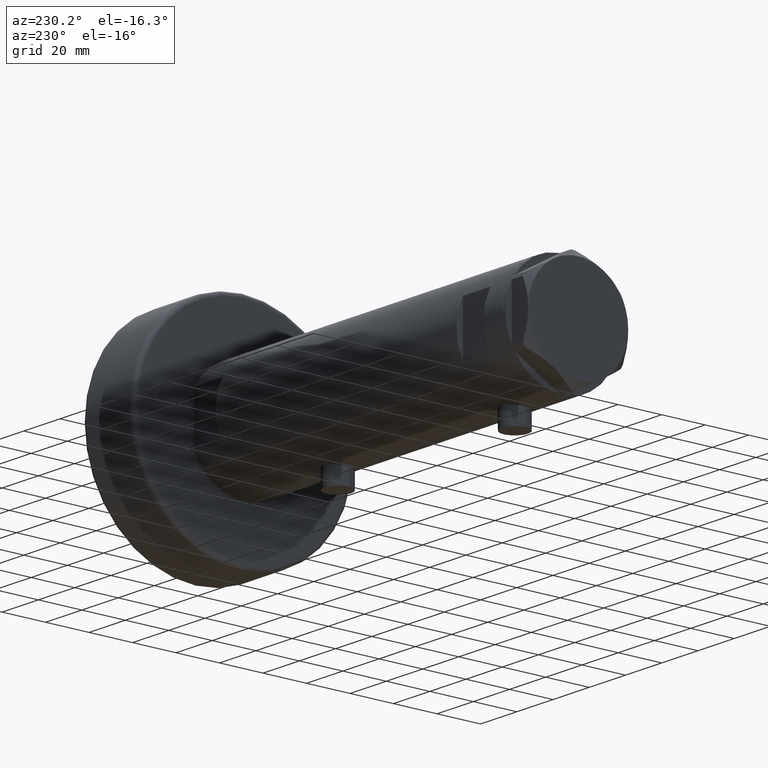
[diagram: clean part render]
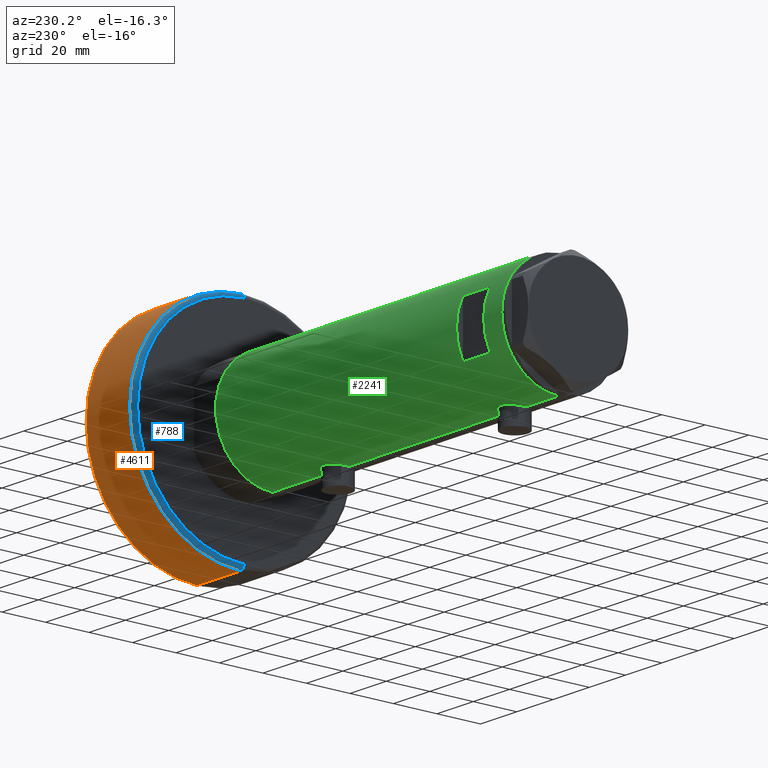
[diagram: same view with three faces highlighted in distinct colors, each labeled with its STEP entity id]
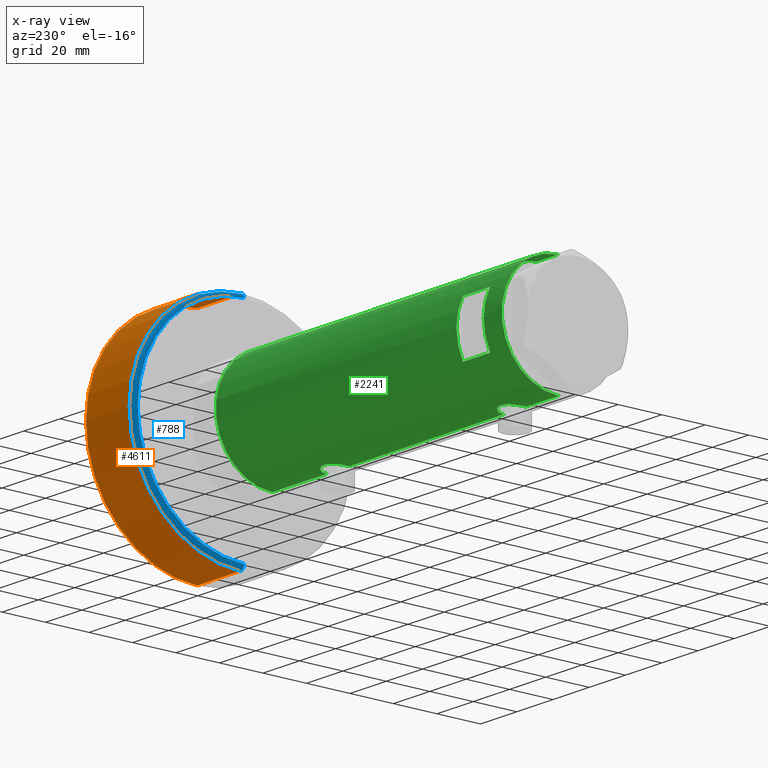
[diagram: x-ray of the same camera — body ghosted, the three highlighted faces saturated]
A machine part, auxiliary view with three faces highlighted in distinct colors.
The next image is the same camera in x-ray (body ghosted, the three faces saturated) — at least one of them is partly hidden behind the body in this view.
Their STEP definitions:

[orange] entity #4611 — the highlighted cylindrical surface (partial cylindrical patch) has radius 51 mm, axis along (-1, -0, 0).
#291 = EDGE_LOOP ( 'NONE', ( #3346, #3261, #5099, #423 ) ) ;
#320 = VERTEX_POINT ( 'NONE', #2695 ) ;
#366 = LINE ( 'NONE', #3251, #4353 ) ;
#412 = CARTESIAN_POINT ( 'NONE',  ( 0.000000000000000000, 0.000000000000000000, 28.00000000000000000 ) ) ;
#423 = ORIENTED_EDGE ( 'NONE', *, *, #1700, .F. ) ;
#429 = VERTEX_POINT ( 'NONE', #1969 ) ;
#521 = CARTESIAN_POINT ( 'NONE',  ( 0.000000000000000000, 0.000000000000000000, 1.999999999999998224 ) ) ;
#599 = DIRECTION ( 'NONE',  ( 0.000000000000000000, 0.000000000000000000, 1.000000000000000000 ) ) ;
#750 = DIRECTION ( 'NONE',  ( -0.000000000000000000, -0.000000000000000000, -1.000000000000000000 ) ) ;
#751 = CYLINDRICAL_SURFACE ( 'NONE', #3280, 50.99999999999999289 ) ;
#1194 = EDGE_CURVE ( 'NONE', #429, #3894, #3676, .T. ) ;
#1220 = DIRECTION ( 'NONE',  ( -0.000000000000000000, -0.000000000000000000, -1.000000000000000000 ) ) ;
#1677 = EDGE_CURVE ( 'NONE', #3894, #1852, #2861, .T. ) ;
#1700 = EDGE_CURVE ( 'NONE', #429, #320, #366, .T. ) ;
#1852 = VERTEX_POINT ( 'NONE', #4563 ) ;
#1901 = EDGE_CURVE ( 'NONE', #1852, #320, #5016, .T. ) ;
#1969 = CARTESIAN_POINT ( 'NONE',  ( -50.99999999999999289, 0.000000000000000000, 26.00000000000000355 ) ) ;
#1975 = VECTOR ( 'NONE', #3226, 1000.000000000000000 ) ;
#2007 = CARTESIAN_POINT ( 'NONE',  ( 50.99999999999999289, 6.245698675651499656E-15, 28.00000000000000000 ) ) ;
#2401 = DIRECTION ( 'NONE',  ( 1.000000000000000000, 0.000000000000000000, 0.000000000000000000 ) ) ;
#2695 = CARTESIAN_POINT ( 'NONE',  ( -50.99999999999999289, 0.000000000000000000, 1.999999999999998224 ) ) ;
#2861 = LINE ( 'NONE', #2007, #1975 ) ;
#3226 = DIRECTION ( 'NONE',  ( -0.000000000000000000, -0.000000000000000000, -1.000000000000000000 ) ) ;
#3251 = CARTESIAN_POINT ( 'NONE',  ( -50.99999999999999289, 0.000000000000000000, 28.00000000000000000 ) ) ;
#3261 = ORIENTED_EDGE ( 'NONE', *, *, #1677, .T. ) ;
#3280 = AXIS2_PLACEMENT_3D ( 'NONE', #412, #3979, #5187 ) ;
#3346 = ORIENTED_EDGE ( 'NONE', *, *, #1194, .T. ) ;
#3536 = FACE_OUTER_BOUND ( 'NONE', #291, .T. ) ;
#3635 = CARTESIAN_POINT ( 'NONE',  ( 0.000000000000000000, 0.000000000000000000, 26.00000000000000355 ) ) ;
#3676 = CIRCLE ( 'NONE', #3837, 50.99999999999999289 ) ;
#3765 = DIRECTION ( 'NONE',  ( 1.000000000000000000, 0.000000000000000000, 0.000000000000000000 ) ) ;
#3837 = AXIS2_PLACEMENT_3D ( 'NONE', #3635, #750, #2401 ) ;
#3894 = VERTEX_POINT ( 'NONE', #4680 ) ;
#3979 = DIRECTION ( 'NONE',  ( -0.000000000000000000, -0.000000000000000000, -1.000000000000000000 ) ) ;
#4353 = VECTOR ( 'NONE', #1220, 1000.000000000000000 ) ;
#4563 = CARTESIAN_POINT ( 'NONE',  ( 50.99999999999999289, 6.245698675651499656E-15, 1.999999999999998224 ) ) ;
#4611 = ADVANCED_FACE ( 'NONE', ( #3536 ), #751, .T. ) ;
#4680 = CARTESIAN_POINT ( 'NONE',  ( 50.99999999999999289, 6.245698675651499656E-15, 26.00000000000000355 ) ) ;
#4687 = AXIS2_PLACEMENT_3D ( 'NONE', #521, #599, #3765 ) ;
#5016 = CIRCLE ( 'NONE', #4687, 50.99999999999999289 ) ;
#5099 = ORIENTED_EDGE ( 'NONE', *, *, #1901, .T. ) ;
#5187 = DIRECTION ( 'NONE',  ( -1.000000000000000000, 0.000000000000000000, 0.000000000000000000 ) ) ;

[blue] entity #788 — the highlighted toroidal blend (fillet) surface has major radius 49 mm and minor (blend) radius 2 mm.
#130 = EDGE_LOOP ( 'NONE', ( #4682, #3468, #1726, #1976 ) ) ;
#290 = AXIS2_PLACEMENT_3D ( 'NONE', #3606, #4479, #1614 ) ;
#320 = VERTEX_POINT ( 'NONE', #2695 ) ;
#521 = CARTESIAN_POINT ( 'NONE',  ( 0.000000000000000000, 0.000000000000000000, 1.999999999999998224 ) ) ;
#599 = DIRECTION ( 'NONE',  ( 0.000000000000000000, 0.000000000000000000, 1.000000000000000000 ) ) ;
#632 = CIRCLE ( 'NONE', #290, 2.000000000000001776 ) ;
#691 = CARTESIAN_POINT ( 'NONE',  ( 48.99999999999998579, 0.000000000000000000, 0.000000000000000000 ) ) ;
#788 = ADVANCED_FACE ( 'NONE', ( #5189 ), #3085, .T. ) ;
#998 = CARTESIAN_POINT ( 'NONE',  ( -48.99999999999998579, 6.123233995736764507E-15, 0.000000000000000000 ) ) ;
#1558 = CARTESIAN_POINT ( 'NONE',  ( 0.000000000000000000, 0.000000000000000000, 1.999999999999998224 ) ) ;
#1588 = DIRECTION ( 'NONE',  ( 0.000000000000000000, 0.000000000000000000, 1.000000000000000000 ) ) ;
#1614 = DIRECTION ( 'NONE',  ( -1.000000000000000000, 1.224646799147353454E-16, 0.000000000000000000 ) ) ;
#1726 = ORIENTED_EDGE ( 'NONE', *, *, #1901, .F. ) ;
#1852 = VERTEX_POINT ( 'NONE', #4563 ) ;
#1872 = VERTEX_POINT ( 'NONE', #998 ) ;
#1894 = EDGE_CURVE ( 'NONE', #3651, #1852, #5186, .T. ) ;
#1901 = EDGE_CURVE ( 'NONE', #1852, #320, #5016, .T. ) ;
#1976 = ORIENTED_EDGE ( 'NONE', *, *, #1894, .F. ) ;
#2074 = AXIS2_PLACEMENT_3D ( 'NONE', #2179, #4980, #5002 ) ;
#2179 = CARTESIAN_POINT ( 'NONE',  ( 0.000000000000000000, 0.000000000000000000, 0.000000000000000000 ) ) ;
#2205 = EDGE_CURVE ( 'NONE', #1872, #320, #632, .T. ) ;
#2237 = CIRCLE ( 'NONE', #2074, 48.99999999999998579 ) ;
#2695 = CARTESIAN_POINT ( 'NONE',  ( -50.99999999999999289, 0.000000000000000000, 1.999999999999998224 ) ) ;
#2890 = EDGE_CURVE ( 'NONE', #1872, #3651, #2237, .T. ) ;
#2920 = CARTESIAN_POINT ( 'NONE',  ( 48.99999999999998579, 0.000000000000000000, 1.999999999999998224 ) ) ;
#3085 = TOROIDAL_SURFACE ( 'NONE', #4937, 48.99999999999998579, 2.000000000000000000 ) ;
#3373 = DIRECTION ( 'NONE',  ( 0.000000000000000000, -1.000000000000000000, 0.000000000000000000 ) ) ;
#3468 = ORIENTED_EDGE ( 'NONE', *, *, #2205, .T. ) ;
#3606 = CARTESIAN_POINT ( 'NONE',  ( -48.99999999999998579, 6.000769315822029359E-15, 1.999999999999998224 ) ) ;
#3651 = VERTEX_POINT ( 'NONE', #691 ) ;
#3765 = DIRECTION ( 'NONE',  ( 1.000000000000000000, 0.000000000000000000, 0.000000000000000000 ) ) ;
#4171 = DIRECTION ( 'NONE',  ( 0.000000000000000000, 0.000000000000000000, -1.000000000000000000 ) ) ;
#4479 = DIRECTION ( 'NONE',  ( 1.224646799147353207E-16, 1.000000000000000000, -0.000000000000000000 ) ) ;
#4563 = CARTESIAN_POINT ( 'NONE',  ( 50.99999999999999289, 6.245698675651499656E-15, 1.999999999999998224 ) ) ;
#4682 = ORIENTED_EDGE ( 'NONE', *, *, #2890, .F. ) ;
#4687 = AXIS2_PLACEMENT_3D ( 'NONE', #521, #599, #3765 ) ;
#4929 = AXIS2_PLACEMENT_3D ( 'NONE', #2920, #3373, #4171 ) ;
#4937 = AXIS2_PLACEMENT_3D ( 'NONE', #1558, #1588, #5162 ) ;
#4980 = DIRECTION ( 'NONE',  ( -0.000000000000000000, -0.000000000000000000, -1.000000000000000000 ) ) ;
#5002 = DIRECTION ( 'NONE',  ( 1.000000000000000000, 0.000000000000000000, 0.000000000000000000 ) ) ;
#5016 = CIRCLE ( 'NONE', #4687, 50.99999999999999289 ) ;
#5162 = DIRECTION ( 'NONE',  ( 1.000000000000000000, 0.000000000000000000, 0.000000000000000000 ) ) ;
#5186 = CIRCLE ( 'NONE', #4929, 2.000000000000000000 ) ;
#5189 = FACE_OUTER_BOUND ( 'NONE', #130, .T. ) ;

[green] entity #2241 — the highlighted cylindrical surface (partial cylindrical patch) has radius 26 mm, axis along (-1, -0, 0).
#2 = CARTESIAN_POINT ( 'NONE',  ( -26.00000000000001066, 0.4145874687851193729, -36.40000000000000568 ) ) ;
#13 = CARTESIAN_POINT ( 'NONE',  ( 25.52465069878074999, 4.952713637311402906, -45.38744860815256743 ) ) ;
#61 = DIRECTION ( 'NONE',  ( 0.000000000000000000, 0.000000000000000000, 1.000000000000000000 ) ) ;
#64 = CARTESIAN_POINT ( 'NONE',  ( 25.31017500740585291, 5.951503630041862891, 64.02049592637402498 ) ) ;
#65 = CARTESIAN_POINT ( 'NONE',  ( -25.28673619335055278, 6.048783215285168602, 53.32449009651820404 ) ) ;
#74 = CARTESIAN_POINT ( 'NONE',  ( 25.20855488770171959, 6.367749707222635891, -35.77997776959043108 ) ) ;
#91 = CARTESIAN_POINT ( 'NONE',  ( -25.72105193281917224, 3.813738527046911297, 59.91833691099432713 ) ) ;
#120 = CARTESIAN_POINT ( 'NONE',  ( 25.52590365620543622, 4.955152228772147893, 65.10123727588241138 ) ) ;
#121 = CARTESIAN_POINT ( 'NONE',  ( -25.43062364804612230, 5.412314182902753679, 51.81772351419070333 ) ) ;
#129 = CARTESIAN_POINT ( 'NONE',  ( 26.00000000000000355, -3.975025925197986111E-20, -32.25000000000000000 ) ) ;
#151 = CARTESIAN_POINT ( 'NONE',  ( -25.23766275406409321, 6.249830297096033327, -42.23808095444884714 ) ) ;
#159 = CARTESIAN_POINT ( 'NONE',  ( 25.17636585680005723, 6.493453152855874322, -35.98900750337197962 ) ) ;
#170 = EDGE_CURVE ( 'NONE', #4793, #5164, #4596, .T. ) ;
#175 = CARTESIAN_POINT ( 'NONE',  ( -25.24766879991037527, 6.209837761082662055, -41.83150430970304967 ) ) ;
#176 = CARTESIAN_POINT ( 'NONE',  ( -25.42927140605241121, 5.422776733968213136, 58.08443996013282629 ) ) ;
#215 = CIRCLE ( 'NONE', #1999, 26.00000000000000355 ) ;
#232 = CARTESIAN_POINT ( 'NONE',  ( -25.81206132723604441, 3.139065735901513055, -48.06978769360877379 ) ) ;
#238 = LINE ( 'NONE', #1392, #1158 ) ;
#257 = CARTESIAN_POINT ( 'NONE',  ( -25.95015815577423623, 1.621168830448744380, -36.61041429560181371 ) ) ;
#258 = LINE ( 'NONE', #1875, #1916 ) ;
#298 = VECTOR ( 'NONE', #4416, 1000.000000000000000 ) ;
#305 = CARTESIAN_POINT ( 'NONE',  ( 25.30960479024496479, 5.958491152160522830, -44.33139677679962887 ) ) ;
#332 = CARTESIAN_POINT ( 'NONE',  ( 24.97016856345952718, 7.245430721349219283, -41.70303040919392856 ) ) ;
#401 = CARTESIAN_POINT ( 'NONE',  ( 25.48882460966380847, 5.133289275481219605, 53.97656476402093517 ) ) ;
#421 = LINE ( 'NONE', #1294, #298 ) ;
#459 = ORIENTED_EDGE ( 'NONE', *, *, #4160, .T. ) ;
#462 = CARTESIAN_POINT ( 'NONE',  ( 24.90951684770588415, 7.451587374037536016, -40.73395604521197555 ) ) ;
#482 = CARTESIAN_POINT ( 'NONE',  ( 25.41763780493360869, 5.474943943663453716, 64.58176313788939638 ) ) ;
#510 = CARTESIAN_POINT ( 'NONE',  ( 24.89484527721569052, 7.499778575171895056, 58.95449194517063773 ) ) ;
#535 = CARTESIAN_POINT ( 'NONE',  ( 24.97016856345952363, 7.245430721349218395, 57.49696959080608138 ) ) ;
#561 = VERTEX_POINT ( 'NONE', #4649 ) ;
#565 = CARTESIAN_POINT ( 'NONE',  ( 25.98255381630415073, 0.9836221648041312271, 66.88933098058191717 ) ) ;
#612 = CARTESIAN_POINT ( 'NONE',  ( -26.00000000000000355, -2.813058302341337106E-16, 61.20000000000000284 ) ) ;
#619 = DIRECTION ( 'NONE',  ( 0.000000000000000000, 0.000000000000000000, 1.000000000000000000 ) ) ;
#635 = CARTESIAN_POINT ( 'NONE',  ( -25.59680708126580129, 4.563450671387941249, 50.67456050020032876 ) ) ;
#665 = CARTESIAN_POINT ( 'NONE',  ( -25.90661719257678541, 2.209805098346977914, -36.80011254218479166 ) ) ;
#730 = CARTESIAN_POINT ( 'NONE',  ( 25.01140519645288762, 7.101774040639623919, -42.17392235700824443 ) ) ;
#764 = VERTEX_POINT ( 'NONE', #2332 ) ;
#766 = LINE ( 'NONE', #3995, #2013 ) ;
#785 = ORIENTED_EDGE ( 'NONE', *, *, #3183, .F. ) ;
#791 = CARTESIAN_POINT ( 'NONE',  ( 25.88814720404044323, 2.420758939209245231, 52.34711713171547132 ) ) ;
#800 = DIRECTION ( 'NONE',  ( 0.000000000000000000, 0.000000000000000000, 1.000000000000000000 ) ) ;
#802 = AXIS2_PLACEMENT_3D ( 'NONE', #3445, #1448, #3050 ) ;
#827 = EDGE_CURVE ( 'NONE', #4106, #3895, #421, .T. ) ;
#879 = CARTESIAN_POINT ( 'NONE',  ( -25.95015815577423268, 1.621168830448741938, 60.98958570439820193 ) ) ;
#885 = CARTESIAN_POINT ( 'NONE',  ( 26.00000000000000355, 3.343657407582877388E-16, -47.25000000000000000 ) ) ;
#911 = VERTEX_POINT ( 'NONE', #4564 ) ;
#919 = CARTESIAN_POINT ( 'NONE',  ( 25.11550258961939974, 6.725017566862030449, -36.42071522193980826 ) ) ;
#936 = CARTESIAN_POINT ( 'NONE',  ( 25.11550258961940330, 6.725017566862032226, 62.77928477806020169 ) ) ;
#937 = CARTESIAN_POINT ( 'NONE',  ( -25.57189498399055338, 4.707763994471528157, 59.08090281055547166 ) ) ;
#941 = CARTESIAN_POINT ( 'NONE',  ( 25.78997056644824326, 3.329333406239038951, -33.01165191566153823 ) ) ;
#951 = CARTESIAN_POINT ( 'NONE',  ( -25.85406084573621754, 2.777003695811657735, -37.03587158673904156 ) ) ;
#952 = CARTESIAN_POINT ( 'NONE',  ( 25.89067367629246164, 2.424883365422551229, 66.56405204505169593 ) ) ;
#978 = ORIENTED_EDGE ( 'NONE', *, *, #1630, .F. ) ;
#982 = CARTESIAN_POINT ( 'NONE',  ( -25.67095236150573712, 4.133649689219794254, -37.94464771725741770 ) ) ;
#985 = CARTESIAN_POINT ( 'NONE',  ( -25.38675822915648084, 5.615881323213569587, 57.72306781662010877 ) ) ;
#988 = DIRECTION ( 'NONE',  ( 0.000000000000000000, 0.000000000000000000, 1.000000000000000000 ) ) ;
#1012 = CARTESIAN_POINT ( 'NONE',  ( -25.24784248027029676, 6.209126813737969819, -43.47268161688059251 ) ) ;
#1019 = CARTESIAN_POINT ( 'NONE',  ( 26.00000000000000355, 0.000000000000000000, -78.95000000000000284 ) ) ;
#1030 = VERTEX_POINT ( 'NONE', #5114 ) ;
#1031 = CARTESIAN_POINT ( 'NONE',  ( -25.67176285215957066, 4.128807479817786508, -47.35991598451124673 ) ) ;
#1033 = CARTESIAN_POINT ( 'NONE',  ( -25.98057228346870673, 1.024901789261881913, 48.78119414145176336 ) ) ;
#1058 = CARTESIAN_POINT ( 'NONE',  ( -25.95208098418916975, 1.628413954368978622, -48.69806792170717813 ) ) ;
#1062 = VERTEX_POINT ( 'NONE', #4669 ) ;
#1106 = CARTESIAN_POINT ( 'NONE',  ( 25.78922176490237916, 3.335318700939508219, -46.48550568766475521 ) ) ;
#1131 = CARTESIAN_POINT ( 'NONE',  ( 25.11254978876589306, 6.737777305585159304, -43.08025351746413634 ) ) ;
#1158 = VECTOR ( 'NONE', #3811, 1000.000000000000000 ) ;
#1201 = DIRECTION ( 'NONE',  ( 0.000000000000000000, 0.000000000000000000, 1.000000000000000000 ) ) ;
#1228 = CARTESIAN_POINT ( 'NONE',  ( -25.96182217530152769, 1.422664245316465070, 61.03935273092390190 ) ) ;
#1253 = DIRECTION ( 'NONE',  ( 1.000000000000000000, 0.000000000000000000, 0.000000000000000000 ) ) ;
#1254 = DIRECTION ( 'NONE',  ( 0.000000000000000000, 0.000000000000000000, 1.000000000000000000 ) ) ;
#1257 = CARTESIAN_POINT ( 'NONE',  ( -26.00000000000000711, 0.4145874687851189289, 61.20000000000001705 ) ) ;
#1289 = CARTESIAN_POINT ( 'NONE',  ( 24.95233689475079331, 7.306396477445179727, -41.46103813146665829 ) ) ;
#1294 = CARTESIAN_POINT ( 'NONE',  ( -26.00000000000000355, 3.184081677783118585E-15, -78.95000000000000284 ) ) ;
#1295 = EDGE_LOOP ( 'NONE', ( #5191, #3622, #2810, #2080 ) ) ;
#1304 = CARTESIAN_POINT ( 'NONE',  ( -25.27696731428695998, 6.089059008147561514, 56.37416306959482171 ) ) ;
#1313 = CARTESIAN_POINT ( 'NONE',  ( 25.31017500740584936, 5.951503630041857562, -35.17950407362597076 ) ) ;
#1380 = B_SPLINE_CURVE_WITH_KNOTS ( 'NONE', 3,
 ( #1636, #1257, #3230, #1228, #879, #5019, #4603, #4940, #2114, #91, #4551, #937, #1388, #176, #985, #2481, #2965, #2907, #1304, #4218, #2093, #2140, #3703, #65, #4524, #2567, #2541, #121, #4970, #2170, #3834, #2700, #635, #5076, #1851, #4661, #1878, #2238, #2315, #1033, #4300, #3090, #3910, #4339 ),
 .UNSPECIFIED., .F., .F.,
 ( 4, 2, 2, 2, 2, 2, 2, 2, 2, 2, 2, 2, 2, 2, 2, 2, 2, 2, 2, 2, 2, 4 ),
 ( 2.732276935479321607E-19, 0.001225774033668403139, 0.001838661050502602649, 0.002451548067336802375, 0.003677322101005202262, 0.004903096134673601281, 0.006128870168342001601, 0.007354644202010401054, 0.007967531218844600346, 0.008580418235678800506, 0.009806192269347199092, 0.01103196630301559768, 0.01225774033668399626, 0.01287062735351819469, 0.01348351437035239485, 0.01409640138718659501, 0.01470928840402079343, 0.01593506243768920069, 0.01716083647135761142, 0.01838661050502602215, 0.01899949752186022578, 0.01961238453869442941 ),
 .UNSPECIFIED. ) ;
#1386 = CARTESIAN_POINT ( 'NONE',  ( -25.42927140605242542, 5.422776733968219354, -39.51556003986718224 ) ) ;
#1388 = CARTESIAN_POINT ( 'NONE',  ( -25.52242378584899285, 4.965907353613394193, 58.76719602921738783 ) ) ;
#1391 = EDGE_CURVE ( 'NONE', #1760, #4911, #1485, .T. ) ;
#1392 = CARTESIAN_POINT ( 'NONE',  ( 26.00000000000000355, 0.000000000000000000, -78.95000000000000284 ) ) ;
#1397 = CARTESIAN_POINT ( 'NONE',  ( 25.08669247833291749, 6.831361936037321669, -36.64462260596211252 ) ) ;
#1413 = CARTESIAN_POINT ( 'NONE',  ( -25.72087293759779314, 3.814831448865740438, -47.61738294827858908 ) ) ;
#1448 = DIRECTION ( 'NONE',  ( -0.000000000000000000, -0.000000000000000000, -1.000000000000000000 ) ) ;
#1481 = EDGE_CURVE ( 'NONE', #1062, #4038, #2865, .T. ) ;
#1485 = B_SPLINE_CURVE_WITH_KNOTS ( 'NONE', 3,
 ( #2454, #2809, #4078, #2783, #2372, #791, #5155, #1550, #2423, #3145, #2011, #4754, #401, #4050, #2036, #4136, #1717, #4158, #2540, #535, #4523, #1682, #510, #3334, #3307, #4939, #2941, #2139, #936, #1780, #2590, #3750, #64, #2480, #482, #120, #3287, #4969, #4575, #952, #2565, #3701, #565, #2168, #3782, #3389 ),
 .UNSPECIFIED., .F., .F.,
 ( 4, 2, 2, 2, 2, 2, 2, 2, 2, 2, 2, 2, 2, 2, 2, 2, 2, 2, 2, 2, 2, 2, 4 ),
 ( 7.012020075610059463E-20, 0.001473395154583048575, 0.002210092731874574272, 0.002946790309166099752, 0.004420185463749143340, 0.005156883041040665784, 0.005893580618332189096, 0.007366975772915219239, 0.008840370927498248516, 0.009577068504789763154, 0.01031376608208127779, 0.01178716123666430533, 0.01326055639124733287, 0.01473395154583036042, 0.01547064912312189240, 0.01620734670041342612, 0.01694404427770495464, 0.01768074185499648662, 0.01915413700957958529, 0.02062753216416268048, 0.02210092731874577221, 0.02283762489603732848, 0.02357432247332888128 ),
 .UNSPECIFIED. ) ;
#1495 = CIRCLE ( 'NONE', #802, 26.00000000000000355 ) ;
#1507 = ORIENTED_EDGE ( 'NONE', *, *, #3926, .F. ) ;
#1550 = CARTESIAN_POINT ( 'NONE',  ( 25.78922176490237916, 3.335318700939509995, 52.71449431233524052 ) ) ;
#1630 = EDGE_CURVE ( 'NONE', #3227, #3895, #1380, .T. ) ;
#1636 = CARTESIAN_POINT ( 'NONE',  ( -26.00000000000000355, -2.813058302341337106E-16, 61.20000000000000284 ) ) ;
#1682 = CARTESIAN_POINT ( 'NONE',  ( 24.90951684770588415, 7.451587374037535128, 58.46604395478803440 ) ) ;
#1717 = CARTESIAN_POINT ( 'NONE',  ( 25.11254978876589661, 6.737777305585160192, 56.11974648253588782 ) ) ;
#1760 = VERTEX_POINT ( 'NONE', #3744 ) ;
#1777 = CARTESIAN_POINT ( 'NONE',  ( -25.27696731428695642, 6.089059008147568619, -41.22583693040520103 ) ) ;
#1780 = CARTESIAN_POINT ( 'NONE',  ( 25.17636585680006434, 6.493453152855875210, 63.21099249662805164 ) ) ;
#1788 = CARTESIAN_POINT ( 'NONE',  ( 25.97197502027375293, 1.230965554787593730, -32.34759175501623218 ) ) ;
#1795 = CARTESIAN_POINT ( 'NONE',  ( 26.00000000000000355, -3.975025925197986111E-20, -32.25000000000000000 ) ) ;
#1819 = CARTESIAN_POINT ( 'NONE',  ( -25.81251897318926680, 3.135439098787741852, -37.22800821914827907 ) ) ;
#1827 = DIRECTION ( 'NONE',  ( 0.000000000000000000, 0.000000000000000000, 1.000000000000000000 ) ) ;
#1849 = CARTESIAN_POINT ( 'NONE',  ( -25.98789693408478385, 0.8193301824841990877, -48.84948980265347984 ) ) ;
#1851 = CARTESIAN_POINT ( 'NONE',  ( -25.72087293759780380, 3.814831448865741770, 49.98261705172143365 ) ) ;
#1874 = CARTESIAN_POINT ( 'NONE',  ( -25.45277932469922177, 5.307477387851101014, -45.95672800165312566 ) ) ;
#1875 = CARTESIAN_POINT ( 'NONE',  ( 26.00000000000000355, 0.000000000000000000, -78.95000000000000284 ) ) ;
#1878 = CARTESIAN_POINT ( 'NONE',  ( -25.85449082491264861, 2.772892880050687126, 49.33390702514680015 ) ) ;
#1916 = VECTOR ( 'NONE', #3807, 1000.000000000000000 ) ;
#1999 = AXIS2_PLACEMENT_3D ( 'NONE', #4341, #1201, #3944 ) ;
#2011 = CARTESIAN_POINT ( 'NONE',  ( 25.59528664075984494, 4.573671112500300673, 53.50090496483274904 ) ) ;
#2013 = VECTOR ( 'NONE', #1254, 1000.000000000000000 ) ;
#2036 = CARTESIAN_POINT ( 'NONE',  ( 25.30960479024496834, 5.958491152160525495, 54.86860322320039529 ) ) ;
#2039 = CYLINDRICAL_SURFACE ( 'NONE', #2397, 26.00000000000000355 ) ;
#2070 = CARTESIAN_POINT ( 'NONE',  ( 24.89484527721569052, 7.499778575171895056, -40.24550805482936511 ) ) ;
#2080 = ORIENTED_EDGE ( 'NONE', *, *, #2506, .F. ) ;
#2093 = CARTESIAN_POINT ( 'NONE',  ( -25.23766275406409321, 6.249830297096026221, 55.36191904555118271 ) ) ;
#2114 = CARTESIAN_POINT ( 'NONE',  ( -25.81251897318925614, 3.135439098787738743, 60.37199178085172235 ) ) ;
#2123 = CARTESIAN_POINT ( 'NONE',  ( 26.00000000000000000, 0.2455784580650491877, -32.25000000000000000 ) ) ;
#2133 = CARTESIAN_POINT ( 'NONE',  ( 12.12435565298214080, 23.00000000000000355, -78.95000000000000284 ) ) ;
#2139 = CARTESIAN_POINT ( 'NONE',  ( 25.08669247833292815, 6.831361936037320781, 62.55537739403792585 ) ) ;
#2140 = CARTESIAN_POINT ( 'NONE',  ( -25.23757896588370286, 6.250168635417627350, 54.54324691589500418 ) ) ;
#2166 = CARTESIAN_POINT ( 'NONE',  ( -25.31738333113901618, 5.918941409682885180, -40.63242077527679186 ) ) ;
#2168 = CARTESIAN_POINT ( 'NONE',  ( 25.99652140603930661, 0.4914164889130520075, 66.93796820480456233 ) ) ;
#2170 = CARTESIAN_POINT ( 'NONE',  ( -25.49884629689154281, 5.081547904122033721, 51.30560194303910748 ) ) ;
#2198 = CARTESIAN_POINT ( 'NONE',  ( 25.59685363299823280, 4.579266302355748053, -33.79027931897348225 ) ) ;
#2210 = CARTESIAN_POINT ( 'NONE',  ( -25.96182217530152769, 1.422664245316466847, -36.56064726907609952 ) ) ;
#2238 = CARTESIAN_POINT ( 'NONE',  ( -25.92432690655986960, 2.018143994254070872, 49.02070577177285315 ) ) ;
#2241 = ADVANCED_FACE ( 'NONE', ( #3554, #2400 ), #2039, .T. ) ;
#2295 = EDGE_CURVE ( 'NONE', #5164, #561, #2660, .T. ) ;
#2315 = CARTESIAN_POINT ( 'NONE',  ( -25.95208098418916620, 1.628413954368980399, 48.90193207829285882 ) ) ;
#2332 = CARTESIAN_POINT ( 'NONE',  ( -12.12435565298214080, 23.00000000000000355, 68.95000000000003126 ) ) ;
#2372 = CARTESIAN_POINT ( 'NONE',  ( 25.92799636947106023, 1.948138538329397873, 52.20322312211786908 ) ) ;
#2393 = VECTOR ( 'NONE', #3743, 1000.000000000000000 ) ;
#2397 = AXIS2_PLACEMENT_3D ( 'NONE', #4429, #800, #5246 ) ;
#2400 = FACE_OUTER_BOUND ( 'NONE', #4532, .T. ) ;
#2423 = CARTESIAN_POINT ( 'NONE',  ( 25.72923282622329566, 3.765147152416745246, 52.94514424215292081 ) ) ;
#2454 = CARTESIAN_POINT ( 'NONE',  ( 26.00000000000000355, -7.221007372182803218E-17, 51.95000000000000284 ) ) ;
#2463 = CARTESIAN_POINT ( 'NONE',  ( 25.38132706741445688, 5.649034551923786118, -44.70731952814045229 ) ) ;
#2480 = CARTESIAN_POINT ( 'NONE',  ( 25.38117076385348270, 5.641057083563592478, 64.39856579741849885 ) ) ;
#2481 = CARTESIAN_POINT ( 'NONE',  ( -25.33346170681504717, 5.849967696906719361, 57.15947052099508596 ) ) ;
#2489 = DIRECTION ( 'NONE',  ( 0.000000000000000000, 1.000000000000000000, -4.536969091016264466E-15 ) ) ;
#2491 = CARTESIAN_POINT ( 'NONE',  ( 24.90976107960111818, 7.450765568638821890, -38.76117130648535181 ) ) ;
#2506 = EDGE_CURVE ( 'NONE', #764, #4793, #1495, .T. ) ;
#2540 = CARTESIAN_POINT ( 'NONE',  ( 25.01140519645288762, 7.101774040639622143, 57.02607764299175130 ) ) ;
#2541 = CARTESIAN_POINT ( 'NONE',  ( -25.38875076695534716, 5.605452563035134617, 52.17814099175896558 ) ) ;
#2565 = CARTESIAN_POINT ( 'NONE',  ( 25.93077501166307286, 1.957027822413553109, 66.70697858562409976 ) ) ;
#2567 = CARTESIAN_POINT ( 'NONE',  ( -25.36894112891956965, 5.694149517195234544, 52.36517494801690731 ) ) ;
#2587 = CARTESIAN_POINT ( 'NONE',  ( -25.36894112891956610, 5.694149517195238985, -45.23482505198308701 ) ) ;
#2590 = CARTESIAN_POINT ( 'NONE',  ( 25.20855488770172670, 6.367749707222635891, 63.42002223040960018 ) ) ;
#2598 = CARTESIAN_POINT ( 'NONE',  ( 25.27545867390324119, 6.096774941222088628, -35.37522593042034202 ) ) ;
#2614 = CARTESIAN_POINT ( 'NONE',  ( -25.52275868012768711, 4.960454986366452879, -46.45761629406634796 ) ) ;
#2622 = CARTESIAN_POINT ( 'NONE',  ( 25.98255381630415783, 0.9836221648041303389, -32.31066901941808567 ) ) ;
#2660 = CIRCLE ( 'NONE', #3669, 26.00000000000000355 ) ;
#2664 = CARTESIAN_POINT ( 'NONE',  ( -26.00000000000000355, 3.184077527325983904E-15, -48.90000000000001279 ) ) ;
#2678 = CARTESIAN_POINT ( 'NONE',  ( 12.12435565298214080, 23.00000000000000355, 68.95000000000003126 ) ) ;
#2699 = ORIENTED_EDGE ( 'NONE', *, *, #1481, .F. ) ;
#2700 = CARTESIAN_POINT ( 'NONE',  ( -25.57167265924276123, 4.701795585128874855, 50.82723711689968837 ) ) ;
#2717 = CARTESIAN_POINT ( 'NONE',  ( 25.59528664075983428, 4.573671112500298896, -45.69909503516725380 ) ) ;
#2783 = CARTESIAN_POINT ( 'NONE',  ( 25.94484652078419273, 1.709678645892020343, 52.14334653240825190 ) ) ;
#2809 = CARTESIAN_POINT ( 'NONE',  ( 26.00000000000000711, 0.4983968644076020582, 51.95000000000000995 ) ) ;
#2810 = ORIENTED_EDGE ( 'NONE', *, *, #170, .F. ) ;
#2865 = B_SPLINE_CURVE_WITH_KNOTS ( 'NONE', 3,
 ( #885, #3111, #4897, #4728, #3985, #3543, #3135, #1106, #4393, #4748, #2717, #13, #3930, #2463, #305, #4363, #1131, #4085, #730, #332, #1289, #462, #2070, #3297, #2491, #4917, #3757, #1397, #919, #159, #74, #2598, #1313, #5026, #3370, #3789, #2198, #3028, #941, #4143, #4640, #1788, #2622, #3815, #2123, #129 ),
 .UNSPECIFIED., .F., .F.,
 ( 4, 2, 2, 2, 2, 2, 2, 2, 2, 2, 2, 2, 2, 2, 2, 2, 2, 2, 2, 2, 2, 2, 4 ),
 ( 3.246886709775799722E-19, 0.001473395154583074379, 0.002210092731874609400, 0.002946790309166144421, 0.004420185463749214463, 0.005156883041040750786, 0.005893580618332287108, 0.007366975772915358017, 0.008840370927498430662, 0.009577068504789955708, 0.01031376608208147902, 0.01178716123666452911, 0.01326055639124757921, 0.01473395154583062930, 0.01547064912312214567, 0.01620734670041366204, 0.01694404427770517668, 0.01768074185499669479, 0.01915413700957973794, 0.02062753216416278457, 0.02210092731874583119, 0.02283762489603735277, 0.02357432247332888128 ),
 .UNSPECIFIED. ) ;
#2902 = ORIENTED_EDGE ( 'NONE', *, *, #3147, .T. ) ;
#2907 = CARTESIAN_POINT ( 'NONE',  ( -25.28915991580759837, 6.038390257328908106, 56.57552651146907152 ) ) ;
#2927 = VECTOR ( 'NONE', #619, 1000.000000000000000 ) ;
#2941 = CARTESIAN_POINT ( 'NONE',  ( 25.00820649268566598, 7.115348876445588999, 61.87184000475453161 ) ) ;
#2965 = CARTESIAN_POINT ( 'NONE',  ( -25.31738333113901973, 5.918941409682879851, 56.96757922472323799 ) ) ;
#2991 = CARTESIAN_POINT ( 'NONE',  ( -12.12435565298214080, 23.00000000000000355, -78.95000000000000284 ) ) ;
#3018 = CARTESIAN_POINT ( 'NONE',  ( -25.85449082491263439, 2.772892880050690234, -48.26609297485322969 ) ) ;
#3028 = CARTESIAN_POINT ( 'NONE',  ( 25.72868876879095623, 3.768709330223690479, -33.24732513129933409 ) ) ;
#3033 = LINE ( 'NONE', #1019, #2927 ) ;
#3045 = CARTESIAN_POINT ( 'NONE',  ( -25.98057228346869962, 1.024901789261879470, -48.81880585854828070 ) ) ;
#3050 = DIRECTION ( 'NONE',  ( 1.000000000000000000, -5.329070518200751394E-15, 0.000000000000000000 ) ) ;
#3090 = CARTESIAN_POINT ( 'NONE',  ( -25.99759026373432036, 0.4091325989570642196, 48.71000109955099333 ) ) ;
#3111 = CARTESIAN_POINT ( 'NONE',  ( 26.00000000000000711, 0.4983968644076025023, -47.25000000000000000 ) ) ;
#3117 = ORIENTED_EDGE ( 'NONE', *, *, #1391, .F. ) ;
#3135 = CARTESIAN_POINT ( 'NONE',  ( 25.86510134953875450, 2.654921787384013854, -46.76867061694904493 ) ) ;
#3145 = CARTESIAN_POINT ( 'NONE',  ( 25.63006864069251023, 4.375159448492147440, 53.35345588241118264 ) ) ;
#3147 = EDGE_CURVE ( 'NONE', #3227, #1030, #5104, .T. ) ;
#3183 = EDGE_CURVE ( 'NONE', #4911, #911, #238, .T. ) ;
#3197 = EDGE_CURVE ( 'NONE', #561, #764, #4683, .T. ) ;
#3227 = VERTEX_POINT ( 'NONE', #612 ) ;
#3230 = CARTESIAN_POINT ( 'NONE',  ( -25.99009688862344092, 0.8219492608955323298, 61.15915939226576370 ) ) ;
#3233 = ORIENTED_EDGE ( 'NONE', *, *, #827, .T. ) ;
#3287 = CARTESIAN_POINT ( 'NONE',  ( 25.59685363299822924, 4.579266302355740947, 65.40972068102654191 ) ) ;
#3290 = EDGE_CURVE ( 'NONE', #5117, #3937, #215, .T. ) ;
#3297 = CARTESIAN_POINT ( 'NONE',  ( 24.89471231507667071, 7.500219916954787180, -39.26121773116972236 ) ) ;
#3307 = CARTESIAN_POINT ( 'NONE',  ( 24.90976107960111818, 7.450765568638821890, 60.43882869351467235 ) ) ;
#3314 = EDGE_CURVE ( 'NONE', #4106, #3918, #4826, .T. ) ;
#3334 = CARTESIAN_POINT ( 'NONE',  ( 24.89471231507667426, 7.500219916954786292, 59.93878226883027338 ) ) ;
#3370 = CARTESIAN_POINT ( 'NONE',  ( 25.41763780493360514, 5.474943943663457269, -34.61823686211066331 ) ) ;
#3386 = CARTESIAN_POINT ( 'NONE',  ( -25.31518616157687873, 5.930210831981644226, -44.66587117207026836 ) ) ;
#3389 = CARTESIAN_POINT ( 'NONE',  ( 26.00000000000000355, -3.975028449552882818E-20, 66.95000000000000284 ) ) ;
#3393 = CARTESIAN_POINT ( 'NONE',  ( 0.000000000000000000, 0.000000000000000000, 53.95000000000012363 ) ) ;
#3409 = CARTESIAN_POINT ( 'NONE',  ( -25.38875076695535071, 5.605452563035138169, -45.42185900824106426 ) ) ;
#3413 = EDGE_CURVE ( 'NONE', #4038, #1760, #3033, .T. ) ;
#3438 = CARTESIAN_POINT ( 'NONE',  ( -25.23757896588369221, 6.250168635417630902, -43.05675308410503987 ) ) ;
#3445 = CARTESIAN_POINT ( 'NONE',  ( 0.000000000000000000, 0.000000000000000000, 68.95000000000003126 ) ) ;
#3469 = CARTESIAN_POINT ( 'NONE',  ( -25.99759026373433457, 0.4091325989570669952, -48.88999890044901520 ) ) ;
#3493 = CARTESIAN_POINT ( 'NONE',  ( -25.57189498399056049, 4.707763994471534374, -38.51909718944452266 ) ) ;
#3543 = CARTESIAN_POINT ( 'NONE',  ( 25.88814720404043968, 2.420758939209242566, -46.85288286828453863 ) ) ;
#3554 = FACE_BOUND ( 'NONE', #1295, .T. ) ;
#3622 = ORIENTED_EDGE ( 'NONE', *, *, #2295, .F. ) ;
#3648 = CARTESIAN_POINT ( 'NONE',  ( -26.00000000000000355, -6.335391871414786776E-16, -36.39999999999999858 ) ) ;
#3669 = AXIS2_PLACEMENT_3D ( 'NONE', #3393, #4999, #2489 ) ;
#3699 = CARTESIAN_POINT ( 'NONE',  ( 12.12435565298213724, 23.00000000000000355, 53.95000000000002416 ) ) ;
#3701 = CARTESIAN_POINT ( 'NONE',  ( 25.97197502027376004, 1.230965554787596394, 66.85240824498376355 ) ) ;
#3703 = CARTESIAN_POINT ( 'NONE',  ( -25.24784248027030031, 6.209126813737962713, 54.12731838311943022 ) ) ;
#3743 = DIRECTION ( 'NONE',  ( -0.000000000000000000, -0.000000000000000000, -1.000000000000000000 ) ) ;
#3744 = CARTESIAN_POINT ( 'NONE',  ( 26.00000000000000355, -7.221007372182803218E-17, 51.95000000000000284 ) ) ;
#3750 = CARTESIAN_POINT ( 'NONE',  ( 25.27545867390324474, 6.096774941222085964, 63.82477406957966082 ) ) ;
#3757 = CARTESIAN_POINT ( 'NONE',  ( 25.00820649268565887, 7.115348876445586335, -37.32815999524549966 ) ) ;
#3782 = CARTESIAN_POINT ( 'NONE',  ( 25.99999999999999645, 0.2455784580650495763, 66.94999999999998863 ) ) ;
#3789 = CARTESIAN_POINT ( 'NONE',  ( 25.52590365620542912, 4.955152228772147893, -34.09876272411761278 ) ) ;
#3807 = DIRECTION ( 'NONE',  ( 0.000000000000000000, 0.000000000000000000, 1.000000000000000000 ) ) ;
#3811 = DIRECTION ( 'NONE',  ( 0.000000000000000000, 0.000000000000000000, 1.000000000000000000 ) ) ;
#3815 = CARTESIAN_POINT ( 'NONE',  ( 25.99652140603931727, 0.4914164889130531177, -32.26203179519542630 ) ) ;
#3830 = CARTESIAN_POINT ( 'NONE',  ( -25.28915991580759481, 6.038390257328916988, -41.02447348853093700 ) ) ;
#3834 = CARTESIAN_POINT ( 'NONE',  ( -25.52275868012767646, 4.960454986366448438, 51.14238370593368899 ) ) ;
#3843 = EDGE_CURVE ( 'NONE', #911, #1030, #3941, .T. ) ;
#3861 = CARTESIAN_POINT ( 'NONE',  ( -25.57167265924275412, 4.701795585128879296, -46.77276288310034147 ) ) ;
#3890 = CARTESIAN_POINT ( 'NONE',  ( -26.00000000000000355, 3.184077527325983904E-15, -48.90000000000001279 ) ) ;
#3895 = VERTEX_POINT ( 'NONE', #4216 ) ;
#3906 = CARTESIAN_POINT ( 'NONE',  ( 26.00000000000000355, 0.000000000000000000, -78.95000000000000284 ) ) ;
#3910 = CARTESIAN_POINT ( 'NONE',  ( -25.99999999999999289, 0.2043916521039015888, 48.69999999999999574 ) ) ;
#3918 = VERTEX_POINT ( 'NONE', #3890 ) ;
#3926 = EDGE_CURVE ( 'NONE', #5117, #1062, #258, .T. ) ;
#3930 = CARTESIAN_POINT ( 'NONE',  ( 25.48882460966380492, 5.133289275481218716, -45.22343523597909609 ) ) ;
#3937 = VERTEX_POINT ( 'NONE', #4705 ) ;
#3941 = CIRCLE ( 'NONE', #4117, 26.00000000000000355 ) ;
#3944 = DIRECTION ( 'NONE',  ( 1.000000000000000000, 0.000000000000000000, 0.000000000000000000 ) ) ;
#3985 = CARTESIAN_POINT ( 'NONE',  ( 25.92799636947105313, 1.948138538329397651, -46.99677687788213376 ) ) ;
#3995 = CARTESIAN_POINT ( 'NONE',  ( -26.00000000000000355, 3.184081677783118585E-15, -78.95000000000000284 ) ) ;
#4038 = VERTEX_POINT ( 'NONE', #1795 ) ;
#4050 = CARTESIAN_POINT ( 'NONE',  ( 25.38132706741445688, 5.649034551923787895, 54.49268047185956476 ) ) ;
#4078 = CARTESIAN_POINT ( 'NONE',  ( 25.98569222077105678, 0.9879514382926382066, 51.99918153312441405 ) ) ;
#4085 = CARTESIAN_POINT ( 'NONE',  ( 25.03487248886523986, 7.018875226450791871, -42.40423217392064714 ) ) ;
#4087 = ORIENTED_EDGE ( 'NONE', *, *, #3413, .F. ) ;
#4106 = VERTEX_POINT ( 'NONE', #4586 ) ;
#4117 = AXIS2_PLACEMENT_3D ( 'NONE', #4868, #61, #1253 ) ;
#4136 = CARTESIAN_POINT ( 'NONE',  ( 25.17424625143663164, 6.506691718592099605, 55.68758373966277020 ) ) ;
#4143 = CARTESIAN_POINT ( 'NONE',  ( 25.89067367629246164, 2.424883365422552561, -32.63594795494832113 ) ) ;
#4158 = CARTESIAN_POINT ( 'NONE',  ( 25.03487248886523986, 7.018875226450790095, 56.79576782607936281 ) ) ;
#4160 = EDGE_CURVE ( 'NONE', #3937, #3918, #766, .T. ) ;
#4184 = CARTESIAN_POINT ( 'NONE',  ( -25.38675822915648439, 5.615881323213576692, -39.87693218337989975 ) ) ;
#4216 = CARTESIAN_POINT ( 'NONE',  ( -26.00000000000000355, 3.184077527313362130E-15, 48.70000000000000995 ) ) ;
#4218 = CARTESIAN_POINT ( 'NONE',  ( -25.24766879991037172, 6.209837761082653174, 55.76849569029696596 ) ) ;
#4238 = CARTESIAN_POINT ( 'NONE',  ( -25.92432690655987315, 2.018143994254076201, -48.57929422822716958 ) ) ;
#4260 = CARTESIAN_POINT ( 'NONE',  ( -25.99009688862344447, 0.8219492608955337731, -36.44084060773424483 ) ) ;
#4262 = CARTESIAN_POINT ( 'NONE',  ( -26.00000000000000355, 3.184081677783118585E-15, -78.95000000000000284 ) ) ;
#4300 = CARTESIAN_POINT ( 'NONE',  ( -25.98789693408479451, 0.8193301824841956460, 48.75051019734655000 ) ) ;
#4339 = CARTESIAN_POINT ( 'NONE',  ( -26.00000000000000355, 3.184077527313362130E-15, 48.70000000000000995 ) ) ;
#4341 = CARTESIAN_POINT ( 'NONE',  ( 0.000000000000000000, 0.000000000000000000, -78.95000000000000284 ) ) ;
#4345 = CARTESIAN_POINT ( 'NONE',  ( 26.00000000000000355, -3.975028449552882818E-20, 66.95000000000000284 ) ) ;
#4363 = CARTESIAN_POINT ( 'NONE',  ( 25.17424625143663164, 6.506691718592096940, -43.51241626033723975 ) ) ;
#4364 = VECTOR ( 'NONE', #1827, 1000.000000000000000 ) ;
#4380 = ORIENTED_EDGE ( 'NONE', *, *, #3843, .F. ) ;
#4393 = CARTESIAN_POINT ( 'NONE',  ( 25.72923282622328855, 3.765147152416745246, -46.25485575784708914 ) ) ;
#4416 = DIRECTION ( 'NONE',  ( 0.000000000000000000, 0.000000000000000000, 1.000000000000000000 ) ) ;
#4429 = CARTESIAN_POINT ( 'NONE',  ( 0.000000000000000000, 0.000000000000000000, -78.95000000000000284 ) ) ;
#4523 = CARTESIAN_POINT ( 'NONE',  ( 24.95233689475079331, 7.306396477445179727, 57.73896186853336587 ) ) ;
#4524 = CARTESIAN_POINT ( 'NONE',  ( -25.31518616157687163, 5.930210831981637121, 52.93412882792974017 ) ) ;
#4532 = EDGE_LOOP ( 'NONE', ( #4852, #459, #5097, #3233, #978, #2902, #4380, #785, #3117, #4087, #2699, #1507 ) ) ;
#4551 = CARTESIAN_POINT ( 'NONE',  ( -25.67095236150574067, 4.133649689219791590, 59.65535228274259083 ) ) ;
#4564 = CARTESIAN_POINT ( 'NONE',  ( 26.00000000000000355, 0.000000000000000000, 78.95000000000000284 ) ) ;
#4574 = CARTESIAN_POINT ( 'NONE',  ( -25.92257874449351007, 2.014648337067152184, -36.73003581636322679 ) ) ;
#4575 = CARTESIAN_POINT ( 'NONE',  ( 25.78997056644824326, 3.329333406239038506, 66.18834808433845751 ) ) ;
#4586 = CARTESIAN_POINT ( 'NONE',  ( -26.00000000000000355, -6.335391871414786776E-16, -36.39999999999999858 ) ) ;
#4596 = LINE ( 'NONE', #2133, #2393 ) ;
#4600 = CARTESIAN_POINT ( 'NONE',  ( -25.72105193281916513, 3.813738527046914406, -37.68166308900568140 ) ) ;
#4603 = CARTESIAN_POINT ( 'NONE',  ( -25.90661719257679252, 2.209805098346976138, 60.79988745781522397 ) ) ;
#4618 = VECTOR ( 'NONE', #988, 1000.000000000000000 ) ;
#4632 = CARTESIAN_POINT ( 'NONE',  ( -25.52242378584899640, 4.965907353613397746, -38.83280397078262780 ) ) ;
#4640 = CARTESIAN_POINT ( 'NONE',  ( 25.93077501166307641, 1.957027822413551332, -32.49302141437591729 ) ) ;
#4649 = CARTESIAN_POINT ( 'NONE',  ( -12.12435565298214080, 23.00000000000000355, 53.95000000000002416 ) ) ;
#4658 = CARTESIAN_POINT ( 'NONE',  ( -25.33346170681504006, 5.849967696906725578, -40.44052947900493677 ) ) ;
#4661 = CARTESIAN_POINT ( 'NONE',  ( -25.81206132723605506, 3.139065735901517495, 49.53021230639125605 ) ) ;
#4669 = CARTESIAN_POINT ( 'NONE',  ( 26.00000000000000355, 3.343657407582877388E-16, -47.25000000000000000 ) ) ;
#4679 = CARTESIAN_POINT ( 'NONE',  ( -25.28673619335055989, 6.048783215285176595, -44.27550990348180449 ) ) ;
#4683 = LINE ( 'NONE', #2991, #4618 ) ;
#4705 = CARTESIAN_POINT ( 'NONE',  ( -26.00000000000000355, 3.184081677783118585E-15, -78.95000000000000284 ) ) ;
#4728 = CARTESIAN_POINT ( 'NONE',  ( 25.94484652078418563, 1.709678645892020787, -47.05665346759175804 ) ) ;
#4748 = CARTESIAN_POINT ( 'NONE',  ( 25.63006864069249602, 4.375159448492148329, -45.84654411758881309 ) ) ;
#4754 = CARTESIAN_POINT ( 'NONE',  ( 25.52465069878074644, 4.952713637311400241, 53.81255139184744252 ) ) ;
#4793 = VERTEX_POINT ( 'NONE', #2678 ) ;
#4826 = B_SPLINE_CURVE_WITH_KNOTS ( 'NONE', 3,
 ( #3648, #2, #4260, #2210, #257, #4574, #665, #951, #1819, #4600, #982, #3493, #4632, #1386, #4184, #4658, #2166, #3830, #1777, #175, #151, #3438, #1012, #4679, #3386, #2587, #3409, #5049, #1874, #4994, #2614, #3861, #5014, #1031, #1413, #232, #3018, #4238, #1058, #3045, #1849, #3469, #5074, #2664 ),
 .UNSPECIFIED., .F., .F.,
 ( 4, 2, 2, 2, 2, 2, 2, 2, 2, 2, 2, 2, 2, 2, 2, 2, 2, 2, 2, 2, 2, 4 ),
 ( 6.153461189582338581E-19, 0.001225774033668418535, 0.001838661050502624550, 0.002451548067336830564, 0.003677322101005242594, 0.004903096134673655924, 0.006128870168342067520, 0.007354644202010479984, 0.007967531218844674940, 0.008580418235678871630, 0.009806192269347263277, 0.01103196630301565666, 0.01225774033668404657, 0.01287062735351824326, 0.01348351437035243995, 0.01409640138718663491, 0.01470928840402082986, 0.01593506243768923539, 0.01716083647135764612, 0.01838661050502604991, 0.01899949752186025353, 0.01961238453869445370 ),
 .UNSPECIFIED. ) ;
#4852 = ORIENTED_EDGE ( 'NONE', *, *, #3290, .T. ) ;
#4868 = CARTESIAN_POINT ( 'NONE',  ( 0.000000000000000000, 0.000000000000000000, 78.95000000000000284 ) ) ;
#4897 = CARTESIAN_POINT ( 'NONE',  ( 25.98569222077104968, 0.9879514382926379845, -47.20081846687561011 ) ) ;
#4911 = VERTEX_POINT ( 'NONE', #4345 ) ;
#4917 = CARTESIAN_POINT ( 'NONE',  ( 24.96662810169869573, 7.257932614256868753, -37.79702690473265392 ) ) ;
#4939 = CARTESIAN_POINT ( 'NONE',  ( 24.96662810169869928, 7.257932614256870529, 61.40297309526737024 ) ) ;
#4940 = CARTESIAN_POINT ( 'NONE',  ( -25.85406084573620689, 2.777003695811653738, 60.56412841326095275 ) ) ;
#4969 = CARTESIAN_POINT ( 'NONE',  ( 25.72868876879096334, 3.768709330223684706, 65.95267486870066875 ) ) ;
#4970 = CARTESIAN_POINT ( 'NONE',  ( -25.45277932469921822, 5.307477387851097461, 51.64327199834691129 ) ) ;
#4994 = CARTESIAN_POINT ( 'NONE',  ( -25.49884629689154281, 5.081547904122038162, -46.29439805696093657 ) ) ;
#4999 = DIRECTION ( 'NONE',  ( 0.000000000000000000, 4.625929269271486900E-15, 1.000000000000000000 ) ) ;
#5014 = CARTESIAN_POINT ( 'NONE',  ( -25.59680708126580129, 4.563450671387943913, -46.92543949979972240 ) ) ;
#5019 = CARTESIAN_POINT ( 'NONE',  ( -25.92257874449351007, 2.014648337067150408, 60.86996418363676753 ) ) ;
#5026 = CARTESIAN_POINT ( 'NONE',  ( 25.38117076385348625, 5.641057083563588037, -34.80143420258151110 ) ) ;
#5049 = CARTESIAN_POINT ( 'NONE',  ( -25.43062364804612230, 5.412314182902757231, -45.78227648580933362 ) ) ;
#5074 = CARTESIAN_POINT ( 'NONE',  ( -26.00000000000000355, 0.2043916521038984246, -48.90000000000002700 ) ) ;
#5076 = CARTESIAN_POINT ( 'NONE',  ( -25.67176285215957421, 4.128807479817785620, 50.24008401548878311 ) ) ;
#5097 = ORIENTED_EDGE ( 'NONE', *, *, #3314, .F. ) ;
#5104 = LINE ( 'NONE', #4262, #4364 ) ;
#5114 = CARTESIAN_POINT ( 'NONE',  ( -26.00000000000000355, 3.184081677783118585E-15, 78.95000000000000284 ) ) ;
#5117 = VERTEX_POINT ( 'NONE', #3906 ) ;
#5155 = CARTESIAN_POINT ( 'NONE',  ( 25.86510134953875450, 2.654921787384014298, 52.43132938305096502 ) ) ;
#5164 = VERTEX_POINT ( 'NONE', #3699 ) ;
#5191 = ORIENTED_EDGE ( 'NONE', *, *, #3197, .F. ) ;
#5246 = DIRECTION ( 'NONE',  ( 1.000000000000000000, 0.000000000000000000, 0.000000000000000000 ) ) ;